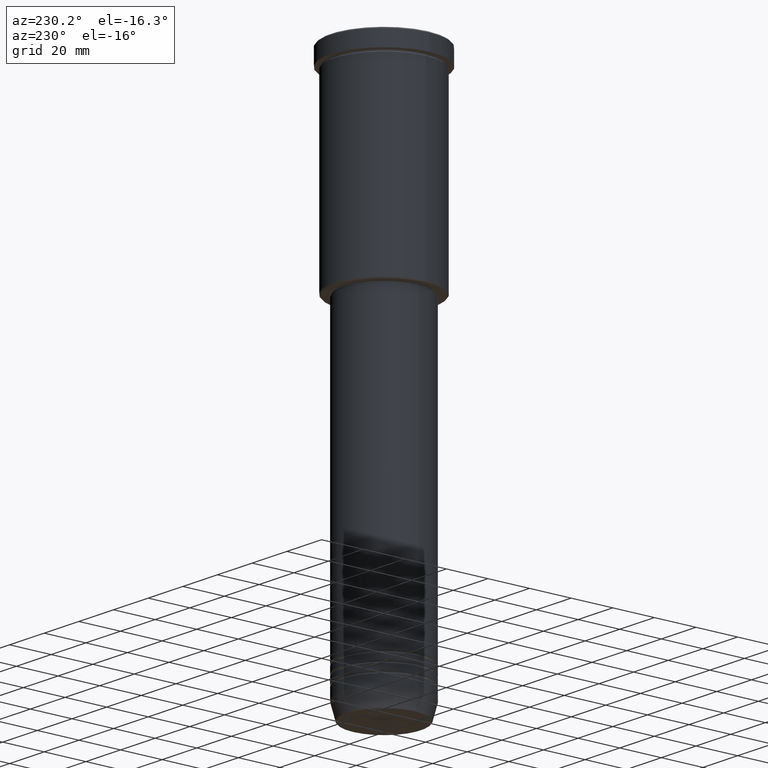
[diagram: clean part render]
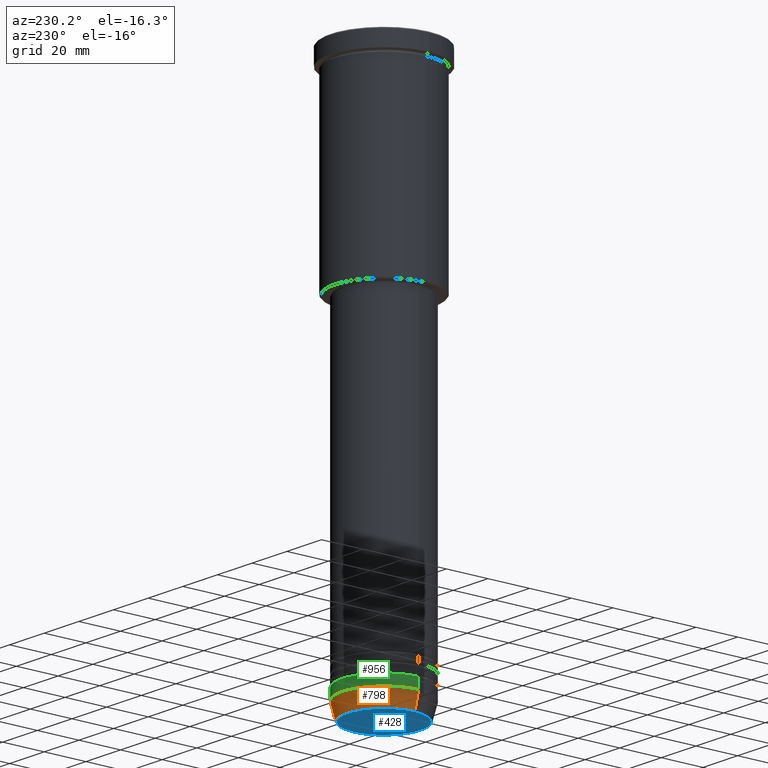
[diagram: same view with three faces highlighted in distinct colors, each labeled with its STEP entity id]
A machine part, auxiliary view with three faces highlighted in distinct colors.
Their STEP definitions:

[orange] entity #798 — the highlighted conical surface has half-angle 15 deg.
#37 = DIRECTION ( 'NONE',  ( 1.000000000000000000, 0.000000000000000000, 0.000000000000000000 ) ) ;
#42 = EDGE_CURVE ( 'NONE', #641, #240, #961, .T. ) ;
#76 = VERTEX_POINT ( 'NONE', #478 ) ;
#101 = DIRECTION ( 'NONE',  ( -0.000000000000000000, -0.000000000000000000, 1.000000000000000000 ) ) ;
#150 = LINE ( 'NONE', #1061, #737 ) ;
#156 = VECTOR ( 'NONE', #1035, 1000.000000000000114 ) ;
#212 = DIRECTION ( 'NONE',  ( -0.000000000000000000, -0.000000000000000000, 1.000000000000000000 ) ) ;
#240 = VERTEX_POINT ( 'NONE', #511 ) ;
#287 = DIRECTION ( 'NONE',  ( -0.000000000000000000, -0.000000000000000000, 1.000000000000000000 ) ) ;
#363 = EDGE_LOOP ( 'NONE', ( #1116, #682, #970, #713 ) ) ;
#397 = DIRECTION ( 'NONE',  ( 1.000000000000000000, 0.000000000000000000, 0.000000000000000000 ) ) ;
#406 = CARTESIAN_POINT ( 'NONE',  ( 20.00000000000000355, 0.000000000000000000, -252.0000000000000000 ) ) ;
#464 = CIRCLE ( 'NONE', #1172, 17.95570587970608045 ) ;
#478 = CARTESIAN_POINT ( 'NONE',  ( 17.95570587970608045, 0.000000000000000000, -259.6294095225512706 ) ) ;
#511 = CARTESIAN_POINT ( 'NONE',  ( -20.00000000000000355, 2.449293598294706907E-15, -252.0000000000000000 ) ) ;
#553 = CARTESIAN_POINT ( 'NONE',  ( 20.00000000000000355, 0.000000000000000000, -252.0000000000000000 ) ) ;
#620 = DIRECTION ( 'NONE',  ( 1.000000000000000000, 0.000000000000000000, 0.000000000000000000 ) ) ;
#641 = VERTEX_POINT ( 'NONE', #553 ) ;
#682 = ORIENTED_EDGE ( 'NONE', *, *, #960, .T. ) ;
#693 = CONICAL_SURFACE ( 'NONE', #1041, 20.00000000000000355, 0.2617993877991499629 ) ;
#713 = ORIENTED_EDGE ( 'NONE', *, *, #868, .F. ) ;
#721 = CARTESIAN_POINT ( 'NONE',  ( 0.000000000000000000, 0.000000000000000000, -259.6294095225512706 ) ) ;
#730 = AXIS2_PLACEMENT_3D ( 'NONE', #915, #101, #620 ) ;
#737 = VECTOR ( 'NONE', #1066, 1000.000000000000114 ) ;
#753 = VERTEX_POINT ( 'NONE', #1013 ) ;
#788 = EDGE_CURVE ( 'NONE', #76, #753, #464, .T. ) ;
#798 = ADVANCED_FACE ( 'NONE', ( #1111 ), #693, .T. ) ;
#868 = EDGE_CURVE ( 'NONE', #76, #641, #1021, .T. ) ;
#915 = CARTESIAN_POINT ( 'NONE',  ( 0.000000000000000000, 0.000000000000000000, -252.0000000000000000 ) ) ;
#960 = EDGE_CURVE ( 'NONE', #753, #240, #150, .T. ) ;
#961 = CIRCLE ( 'NONE', #730, 20.00000000000000355 ) ;
#970 = ORIENTED_EDGE ( 'NONE', *, *, #42, .F. ) ;
#1013 = CARTESIAN_POINT ( 'NONE',  ( -17.95570587970608045, 2.324116685748021371E-15, -259.6294095225512706 ) ) ;
#1021 = LINE ( 'NONE', #406, #156 ) ;
#1035 = DIRECTION ( 'NONE',  ( 0.2588190451025212391, 0.000000000000000000, 0.9659258262890680902 ) ) ;
#1041 = AXIS2_PLACEMENT_3D ( 'NONE', #1135, #212, #37 ) ;
#1061 = CARTESIAN_POINT ( 'NONE',  ( -20.00000000000000355, 2.449293598294706907E-15, -252.0000000000000000 ) ) ;
#1066 = DIRECTION ( 'NONE',  ( -0.2588190451025212391, 3.169619151431771721E-17, 0.9659258262890680902 ) ) ;
#1111 = FACE_OUTER_BOUND ( 'NONE', #363, .T. ) ;
#1116 = ORIENTED_EDGE ( 'NONE', *, *, #788, .T. ) ;
#1135 = CARTESIAN_POINT ( 'NONE',  ( 0.000000000000000000, 0.000000000000000000, -252.0000000000000000 ) ) ;
#1172 = AXIS2_PLACEMENT_3D ( 'NONE', #721, #287, #397 ) ;

[blue] entity #428 — the highlighted planar face has unit normal (0, -0, 1).
#1 = DIRECTION ( 'NONE',  ( 1.000000000000000000, 0.000000000000000000, 0.000000000000000000 ) ) ;
#63 = CIRCLE ( 'NONE', #410, 17.47274296656153680 ) ;
#91 = ORIENTED_EDGE ( 'NONE', *, *, #461, .T. ) ;
#128 = DIRECTION ( 'NONE',  ( 0.000000000000000000, 0.000000000000000000, -1.000000000000000000 ) ) ;
#137 = CARTESIAN_POINT ( 'NONE',  ( -17.47274296656153680, 2.169366823916868503E-15, -260.0000000000000000 ) ) ;
#183 = CARTESIAN_POINT ( 'NONE',  ( 0.000000000000000000, 0.000000000000000000, -260.0000000000000000 ) ) ;
#185 = ORIENTED_EDGE ( 'NONE', *, *, #591, .T. ) ;
#213 = CARTESIAN_POINT ( 'NONE',  ( 0.000000000000000000, 0.000000000000000000, -260.0000000000000000 ) ) ;
#353 = CARTESIAN_POINT ( 'NONE',  ( 0.000000000000000000, 0.000000000000000000, -260.0000000000000000 ) ) ;
#358 = DIRECTION ( 'NONE',  ( 0.000000000000000000, -0.000000000000000000, 1.000000000000000000 ) ) ;
#379 = CARTESIAN_POINT ( 'NONE',  ( 17.47274296656153680, 0.000000000000000000, -260.0000000000000000 ) ) ;
#410 = AXIS2_PLACEMENT_3D ( 'NONE', #183, #545, #914 ) ;
#428 = ADVANCED_FACE ( 'NONE', ( #1171 ), #993, .F. ) ;
#461 = EDGE_CURVE ( 'NONE', #604, #882, #63, .T. ) ;
#491 = DIRECTION ( 'NONE',  ( 1.000000000000000000, 0.000000000000000000, 0.000000000000000000 ) ) ;
#545 = DIRECTION ( 'NONE',  ( 0.000000000000000000, 0.000000000000000000, -1.000000000000000000 ) ) ;
#591 = EDGE_CURVE ( 'NONE', #882, #604, #736, .T. ) ;
#604 = VERTEX_POINT ( 'NONE', #379 ) ;
#710 = AXIS2_PLACEMENT_3D ( 'NONE', #353, #358, #1 ) ;
#736 = CIRCLE ( 'NONE', #1040, 17.47274296656153680 ) ;
#848 = EDGE_LOOP ( 'NONE', ( #91, #185 ) ) ;
#882 = VERTEX_POINT ( 'NONE', #137 ) ;
#914 = DIRECTION ( 'NONE',  ( 1.000000000000000000, 0.000000000000000000, 0.000000000000000000 ) ) ;
#993 = PLANE ( 'NONE',  #710 ) ;
#1040 = AXIS2_PLACEMENT_3D ( 'NONE', #213, #128, #491 ) ;
#1171 = FACE_OUTER_BOUND ( 'NONE', #848, .T. ) ;

[green] entity #956 — the highlighted cylindrical surface (partial cylindrical patch) has radius 20 mm, axis along (-0, -0, 1).
#29 = ORIENTED_EDGE ( 'NONE', *, *, #132, .F. ) ;
#42 = EDGE_CURVE ( 'NONE', #641, #240, #961, .T. ) ;
#45 = AXIS2_PLACEMENT_3D ( 'NONE', #777, #1114, #662 ) ;
#58 = DIRECTION ( 'NONE',  ( -0.000000000000000000, -0.000000000000000000, 1.000000000000000000 ) ) ;
#99 = CIRCLE ( 'NONE', #45, 20.00000000000000000 ) ;
#101 = DIRECTION ( 'NONE',  ( -0.000000000000000000, -0.000000000000000000, 1.000000000000000000 ) ) ;
#132 = EDGE_CURVE ( 'NONE', #233, #189, #99, .T. ) ;
#140 = DIRECTION ( 'NONE',  ( -0.000000000000000000, -0.000000000000000000, 1.000000000000000000 ) ) ;
#153 = ORIENTED_EDGE ( 'NONE', *, *, #1003, .F. ) ;
#160 = CARTESIAN_POINT ( 'NONE',  ( 20.00000000000000355, 0.000000000000000000, 0.000000000000000000 ) ) ;
#189 = VERTEX_POINT ( 'NONE', #759 ) ;
#194 = VECTOR ( 'NONE', #58, 1000.000000000000000 ) ;
#228 = EDGE_CURVE ( 'NONE', #240, #189, #229, .T. ) ;
#229 = LINE ( 'NONE', #690, #194 ) ;
#233 = VERTEX_POINT ( 'NONE', #963 ) ;
#239 = CARTESIAN_POINT ( 'NONE',  ( 0.000000000000000000, 0.000000000000000000, 0.000000000000000000 ) ) ;
#240 = VERTEX_POINT ( 'NONE', #511 ) ;
#280 = ORIENTED_EDGE ( 'NONE', *, *, #228, .T. ) ;
#509 = ORIENTED_EDGE ( 'NONE', *, *, #42, .T. ) ;
#511 = CARTESIAN_POINT ( 'NONE',  ( -20.00000000000000355, 2.449293598294706907E-15, -252.0000000000000000 ) ) ;
#553 = CARTESIAN_POINT ( 'NONE',  ( 20.00000000000000355, 0.000000000000000000, -252.0000000000000000 ) ) ;
#620 = DIRECTION ( 'NONE',  ( 1.000000000000000000, 0.000000000000000000, 0.000000000000000000 ) ) ;
#641 = VERTEX_POINT ( 'NONE', #553 ) ;
#662 = DIRECTION ( 'NONE',  ( 1.000000000000000000, 0.000000000000000000, 0.000000000000000000 ) ) ;
#690 = CARTESIAN_POINT ( 'NONE',  ( -20.00000000000000355, 2.449293598294706907E-15, 0.000000000000000000 ) ) ;
#695 = CYLINDRICAL_SURFACE ( 'NONE', #980, 20.00000000000000355 ) ;
#700 = LINE ( 'NONE', #160, #871 ) ;
#730 = AXIS2_PLACEMENT_3D ( 'NONE', #915, #101, #620 ) ;
#759 = CARTESIAN_POINT ( 'NONE',  ( -20.00000000000000000, 2.449293598294706513E-15, -247.0000000000000000 ) ) ;
#777 = CARTESIAN_POINT ( 'NONE',  ( 0.000000000000000000, 0.000000000000000000, -247.0000000000000000 ) ) ;
#780 = DIRECTION ( 'NONE',  ( -0.000000000000000000, -0.000000000000000000, 1.000000000000000000 ) ) ;
#871 = VECTOR ( 'NONE', #780, 1000.000000000000000 ) ;
#891 = DIRECTION ( 'NONE',  ( 1.000000000000000000, 0.000000000000000000, 0.000000000000000000 ) ) ;
#915 = CARTESIAN_POINT ( 'NONE',  ( 0.000000000000000000, 0.000000000000000000, -252.0000000000000000 ) ) ;
#956 = ADVANCED_FACE ( 'NONE', ( #971 ), #695, .T. ) ;
#961 = CIRCLE ( 'NONE', #730, 20.00000000000000355 ) ;
#963 = CARTESIAN_POINT ( 'NONE',  ( 20.00000000000000000, 0.000000000000000000, -247.0000000000000000 ) ) ;
#971 = FACE_OUTER_BOUND ( 'NONE', #1124, .T. ) ;
#980 = AXIS2_PLACEMENT_3D ( 'NONE', #239, #140, #891 ) ;
#1003 = EDGE_CURVE ( 'NONE', #641, #233, #700, .T. ) ;
#1114 = DIRECTION ( 'NONE',  ( -0.000000000000000000, -0.000000000000000000, 1.000000000000000000 ) ) ;
#1124 = EDGE_LOOP ( 'NONE', ( #509, #280, #29, #153 ) ) ;